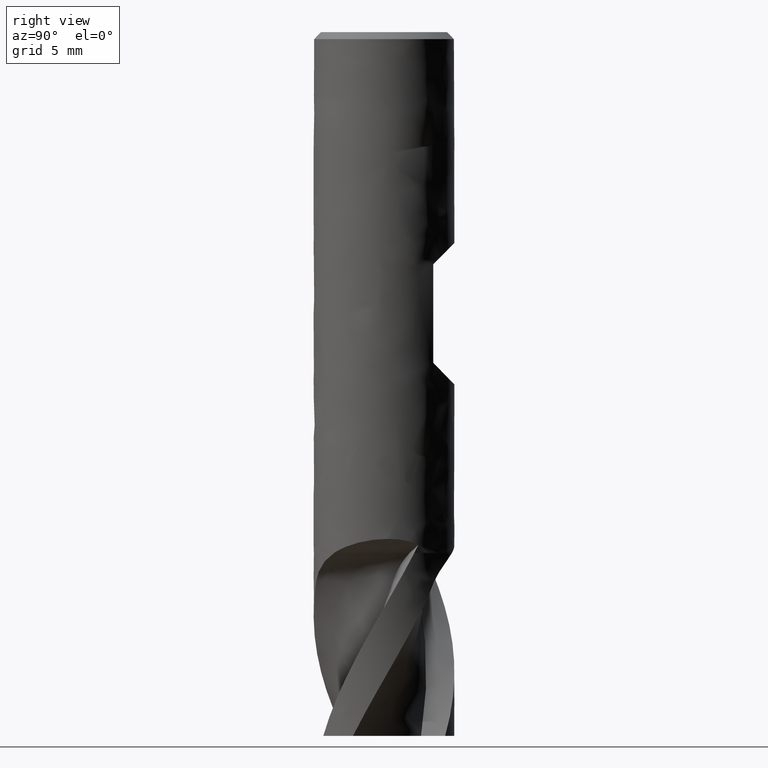
[diagram: clean part render]
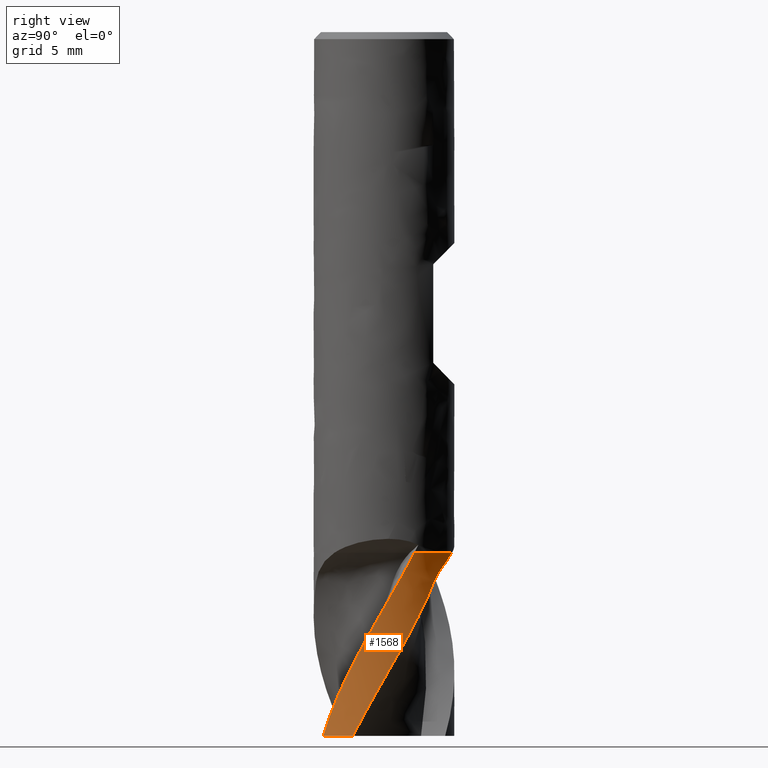
[diagram: same view with one face highlighted and labeled with its STEP entity id]
A machine part, right view. The second image highlights one B-rep face of the part: STEP entity #1568.
In plain terms, the highlighted face is a freeform B-spline surface patch.
Its self-contained STEP definition (entity closure, byte-faithful):
#996 = VERTEX_POINT('', #997);
#997 = CARTESIAN_POINT('', (4.51357657803262, 2.15119187294748, -37.));
#1003 = EDGE_CURVE('', #1004, #996, #1006, .T.);
#1004 = VERTEX_POINT('', #1005);
#1005 = CARTESIAN_POINT('', (1.30531146685175, 4.82660978063333, -37.));
#1006 = CIRCLE('', #1007, 5.);
#1007 = AXIS2_PLACEMENT_3D('', #1008, #1009, #1010);
#1008 = CARTESIAN_POINT('', (-4.71844785465692E-16, 2.67195134097322E-16, -37.));
#1009 = DIRECTION('', (3.74939945665465E-33, 6.12323399573677E-17, -1.));
#1010 = DIRECTION('', (-1., 4.60912628822424E-16, 2.4473359322044E-32));
#1379 = EDGE_CURVE('', #1004, #1380, #1382, .T.);
#1380 = VERTEX_POINT('', #1381);
#1381 = CARTESIAN_POINT('', (4.48830973908435, -2.20342362836576, -50.));
#1382 = B_SPLINE_CURVE_WITH_KNOTS('', 3, (#1383, #1384, #1385, #1386, #1387, #1388, #1389, #1390, #1391, #1392, #1393, #1394, #1395, #1396, #1397, #1398, #1399, #1400, #1401, #1402, #1403, #1404, #1405, #1406, #1407, #1408, #1409, #1410, #1411, #1412, #1413, #1414, #1415, #1416, #1417, #1418, #1419, #1420, #1421, #1422, #1423, #1424, #1425, #1426, #1427, #1428, #1429, #1430, #1431, #1432, #1433, #1434, #1435, #1436, #1437, #1438, #1439, #1440, #1441, #1442, #1443, #1444, #1445, #1446, #1447, #1448, #1449, #1450, #1451, #1452, #1453, #1454, #1455, #1456, #1457, #1458, #1459, #1460, #1461, #1462, #1463, #1464, #1465, #1466, #1467, #1468, #1469, #1470, #1471, #1472, #1473, #1474, #1475, #1476, #1477, #1478, #1479, #1480, #1481, #1482, #1483, #1484, #1485, #1486, #1487, #1488, #1489, #1490, #1491, #1492, #1493, #1494, #1495, #1496, #1497, #1498, #1499, #1500, #1501, #1502, #1503, #1504, #1505, #1506, #1507, #1508, #1509, #1510, #1511, #1512, #1513, #1514, #1515, #1516, #1517, #1518, #1519, #1520, #1521, #1522, #1523, #1524, #1525, #1526, #1527), .UNSPECIFIED., .F., .U., (4, 3, 3, 3, 3, 3, 3, 3, 3, 3, 3, 3, 3, 3, 3, 3, 3, 3, 3, 3, 3, 3, 3, 3, 3, 3, 3, 3, 3, 3, 3, 3, 3, 3, 3, 3, 3, 3, 3, 3, 3, 3, 3, 3, 3, 3, 3, 3, 4), (4.37844184585362, 4.4573991162144, 4.75083853816044, 5.04425922878088, 5.24034752674564, 5.4364595751668, 5.63260764538411, 5.82880447002843, 6.02506307923242, 6.22139839774282, 6.41784107427034, 6.61441003495847, 6.81111998971464, 7.00798120996846, 7.20499678276003, 7.40215933812683, 7.48976255478795, 7.62117620688937, 7.75255210436723, 7.88389475488637, 8.01521355028897, 8.14652150373495, 8.27783401833125, 8.40916802090349, 8.49674693366382, 8.58433799891098, 8.78146484131774, 8.97859443367228, 9.17570758804616, 9.47132619184794, 9.60267358640728, 10.0457101003328, 10.4888068283387, 10.6858315911003, 11.1290901207019, 11.572276998272, 11.8677385777687, 12.5321229845816, 12.97518599297, 13.9710224140371, 14.9665152821951, 15.6305259801557, 15.6889033012926, 16.6888511984757, 17.6884302266211, 18.35423921757, 19.0199493698703, 20.0187378524374, 20.3202438136071), .UNSPECIFIED.);
#1383 = CARTESIAN_POINT('', (1.30531146685175, 4.82660978063333, -37.));
#1384 = CARTESIAN_POINT('', (1.32828509140997, 4.82039677876786, -37.0112385803034));
#1385 = CARTESIAN_POINT('', (1.35117807859742, 4.81402949390408, -37.02257292185));
#1386 = CARTESIAN_POINT('', (1.37397539471853, 4.80751407847216, -37.0339977301277));
#1387 = CARTESIAN_POINT('', (1.45870009750942, 4.78329997216704, -37.0764572670588));
#1388 = CARTESIAN_POINT('', (1.54221869369486, 4.75700499499804, -37.1202234253692));
#1389 = CARTESIAN_POINT('', (1.62431501394362, 4.72880542372779, -37.1653054491186));
#1390 = CARTESIAN_POINT('', (1.70640609368007, 4.70060765254065, -37.2103845951154));
#1391 = CARTESIAN_POINT('', (1.78713850218525, 4.67048359613243, -37.2568140215424));
#1392 = CARTESIAN_POINT('', (1.86630054817101, 4.6386336634721, -37.30461717354));
#1393 = CARTESIAN_POINT('', (1.91920326211368, 4.61734886902747, -37.3365632462342));
#1394 = CARTESIAN_POINT('', (1.97142747399772, 4.595284863625, -37.3691366310585));
#1395 = CARTESIAN_POINT('', (2.02291045155155, 4.57250842590856, -37.4023484976844));
#1396 = CARTESIAN_POINT('', (2.07439966478708, 4.5497292294819, -37.4355643869725));
#1397 = CARTESIAN_POINT('', (2.12516516101477, 4.52622955443021, -37.4694302704926));
#1398 = CARTESIAN_POINT('', (2.17514388440675, 4.50208274936496, -37.5039612013215));
#1399 = CARTESIAN_POINT('', (2.22513178787411, 4.47793150902255, -37.5384984747803));
#1400 = CARTESIAN_POINT('', (2.27435000925492, 4.45312444427012, -37.5737129730712));
#1401 = CARTESIAN_POINT('', (2.32273436447439, 4.42774266100595, -37.6096241887208));
#1402 = CARTESIAN_POINT('', (2.37113074607532, 4.40235456886349, -37.6455443304371));
#1403 = CARTESIAN_POINT('', (2.41871004867935, 4.37638236906087, -37.6821742074358));
#1404 = CARTESIAN_POINT('', (2.46540586931815, 4.34991653937577, -37.7195383847928));
#1405 = CARTESIAN_POINT('', (2.51211639498962, 4.32344237530688, -37.7569143285442));
#1406 = CARTESIAN_POINT('', (2.5579600910179, 4.29646441134362, -37.7950386821634));
#1407 = CARTESIAN_POINT('', (2.60286684584795, 4.26908470082177, -37.83394177414));
#1408 = CARTESIAN_POINT('', (2.64779115285586, 4.2416942887128, -37.872860071713));
#1409 = CARTESIAN_POINT('', (2.69179401073874, 4.2138918703176, -37.9125744780811));
#1410 = CARTESIAN_POINT('', (2.73480545154496, 4.18579014550419, -37.9531129899421));
#1411 = CARTESIAN_POINT('', (2.77784041141558, 4.15767305440071, -37.9936736686465));
#1412 = CARTESIAN_POINT('', (2.81990106368949, 4.12924435697379, -38.0350752196904));
#1413 = CARTESIAN_POINT('', (2.86091530325868, 4.10062966232996, -38.0773455241977));
#1414 = CARTESIAN_POINT('', (2.90195590903763, 4.07199657258605, -38.1196430023825));
#1415 = CARTESIAN_POINT('', (2.94196697836536, 4.0431643968786, -38.1628290561138));
#1416 = CARTESIAN_POINT('', (2.98087060910215, 4.01427582657084, -38.2069337025));
#1417 = CARTESIAN_POINT('', (3.01980214445389, 3.98536653520399, -38.2510699840614));
#1418 = CARTESIAN_POINT('', (3.05764371805902, 3.95638644192391, -38.2961476810074));
#1419 = CARTESIAN_POINT('', (3.09430885158068, 3.92749955200881, -38.3421980718538));
#1420 = CARTESIAN_POINT('', (3.13100217975917, 3.89859044872997, -38.3882838744073));
#1421 = CARTESIAN_POINT('', (3.16653759520256, 3.8697584627274, -38.4353692489858));
#1422 = CARTESIAN_POINT('', (3.20081604883572, 3.8411946867499, -38.4834851102025));
#1423 = CARTESIAN_POINT('', (3.23512137909954, 3.8126085148363, -38.5316386975152));
#1424 = CARTESIAN_POINT('', (3.26818993124803, 3.78427226392183, -38.5808552622687));
#1425 = CARTESIAN_POINT('', (3.29990432131013, 3.75641204744617, -38.63116230632));
#1426 = CARTESIAN_POINT('', (3.3316423717492, 3.72853104598228, -38.6815068817136));
#1427 = CARTESIAN_POINT('', (3.36204890018549, 3.70110484285366, -38.7329824092251));
#1428 = CARTESIAN_POINT('', (3.39097993758663, 3.67440540263115, -38.7856071688594));
#1429 = CARTESIAN_POINT('', (3.40383456879674, 3.66254231411421, -38.8089893887307));
#1430 = CARTESIAN_POINT('', (3.41639863101299, 3.6508224612303, -38.8326074651311));
#1431 = CARTESIAN_POINT('', (3.42866999982171, 3.63926119319881, -38.8564497219011));
#1432 = CARTESIAN_POINT('', (3.44707828952727, 3.62191812621053, -38.8922155094588));
#1433 = CARTESIAN_POINT('', (3.46483578923556, 3.60492479946103, -38.9284960041812));
#1434 = CARTESIAN_POINT('', (3.48196752797164, 3.58830073072959, -38.9652245016833));
#1435 = CARTESIAN_POINT('', (3.4990943448268, 3.57168143802748, -39.001942447233));
#1436 = CARTESIAN_POINT('', (3.515601925058, 3.55542543747201, -39.039121711182));
#1437 = CARTESIAN_POINT('', (3.53154057932516, 3.53952272723051, -39.0766823205757));
#1438 = CARTESIAN_POINT('', (3.5474752000383, 3.52362404144678, -39.1142334246031));
#1439 = CARTESIAN_POINT('', (3.56284597829233, 3.50807391247602, -39.1521768732114));
#1440 = CARTESIAN_POINT('', (3.5777311661519, 3.49282689275406, -39.1904224655402));
#1441 = CARTESIAN_POINT('', (3.59261365048836, 3.47758264227294, -39.2286611115111));
#1442 = CARTESIAN_POINT('', (3.60701410650809, 3.46263813181096, -39.2672097949299));
#1443 = CARTESIAN_POINT('', (3.62103818344278, 3.44790987034893, -39.305971543328));
#1444 = CARTESIAN_POINT('', (3.6350611025201, 3.43318282488321, -39.3447300914744));
#1445 = CARTESIAN_POINT('', (3.64870984180672, 3.41866992139379, -39.3837062751162));
#1446 = CARTESIAN_POINT('', (3.66211310441732, 3.40425140235778, -39.4227986278494));
#1447 = CARTESIAN_POINT('', (3.67551683260746, 3.38983238247601, -39.4618923385057));
#1448 = CARTESIAN_POINT('', (3.68867633855818, 3.37550651854632, -39.501104083009));
#1449 = CARTESIAN_POINT('', (3.70173528819006, 3.36112419529068, -39.5403277861603));
#1450 = CARTESIAN_POINT('', (3.71479637478807, 3.34673951851209, -39.5795579078773));
#1451 = CARTESIAN_POINT('', (3.72775786729944, 3.33229735865728, -39.6188006533316));
#1452 = CARTESIAN_POINT('', (3.74076709742732, 3.31762890070683, -39.6579428253703));
#1453 = CARTESIAN_POINT('', (3.7494421869558, 3.30784736984649, -39.6840444350304));
#1454 = CARTESIAN_POINT('', (3.7581387192353, 3.29796464646932, -39.7101016077045));
#1455 = CARTESIAN_POINT('', (3.76689825536777, 3.28792906457959, -39.7360782736572));
#1456 = CARTESIAN_POINT('', (3.77565900697717, 3.27789209014828, -39.7620585441431));
#1457 = CARTESIAN_POINT('', (3.7844883250629, 3.26769554352666, -39.7879546757894));
#1458 = CARTESIAN_POINT('', (3.79337432355405, 3.25734727061774, -39.8137697558326));
#1459 = CARTESIAN_POINT('', (3.81337258272863, 3.23405811027769, -39.8718675218663));
#1460 = CARTESIAN_POINT('', (3.83365516347632, 3.21000226212264, -39.9295645357856));
#1461 = CARTESIAN_POINT('', (3.85406535442965, 3.18530693086007, -39.9869337827438));
#1462 = CARTESIAN_POINT('', (3.87447583010808, 3.16061125509409, -40.0443038300113));
#1463 = CARTESIAN_POINT('', (3.89501652167895, 3.13527285917332, -40.1013535035284));
#1464 = CARTESIAN_POINT('', (3.91554441967979, 3.10942308113812, -40.1581705838971));
#1465 = CARTESIAN_POINT('', (3.93607060592754, 3.08357545862987, -40.2149829264786));
#1466 = CARTESIAN_POINT('', (3.95658569113295, 3.05721433957255, -40.2715670794764));
#1467 = CARTESIAN_POINT('', (3.97695852754911, 3.03047865363781, -40.3280225204433));
#1468 = CARTESIAN_POINT('', (4.00751249781027, 2.9903820595124, -40.412691038324));
#1469 = CARTESIAN_POINT('', (4.03774793176657, 2.94943479870226, -40.4970742800089));
#1470 = CARTESIAN_POINT('', (4.06725680444533, 2.90816472825959, -40.5815494100662));
#1471 = CARTESIAN_POINT('', (4.08036800073978, 2.88982787071338, -40.6190828673499));
#1472 = CARTESIAN_POINT('', (4.09333610376509, 2.8714285784168, -40.6566362423227));
#1473 = CARTESIAN_POINT('', (4.10612755050172, 2.85301884659228, -40.6942442852543));
#1474 = CARTESIAN_POINT('', (4.14927327097279, 2.79092257557601, -40.8210967157261));
#1475 = CARTESIAN_POINT('', (4.19044949620841, 2.72866577597341, -40.9485524181277));
#1476 = CARTESIAN_POINT('', (4.22993499822604, 2.66601761261677, -41.0763222969887));
#1477 = CARTESIAN_POINT('', (4.26942586680629, 2.60336093460857, -41.2041095413388));
#1478 = CARTESIAN_POINT('', (4.3072342486109, 2.54030207068243, -41.3322292702457));
#1479 = CARTESIAN_POINT('', (4.34363555419278, 2.47645516259681, -41.4603443946404));
#1480 = CARTESIAN_POINT('', (4.35982154281147, 2.44806537516767, -41.5173113059143));
#1481 = CARTESIAN_POINT('', (4.37572979474424, 2.41951653184847, -41.5742787932573));
#1482 = CARTESIAN_POINT('', (4.3913814500553, 2.39076744166181, -41.6312148164534));
#1483 = CARTESIAN_POINT('', (4.42659392599877, 2.32608887402949, -41.7593072327035));
#1484 = CARTESIAN_POINT('', (4.46049913395283, 2.26040365150372, -41.8872612826451));
#1485 = CARTESIAN_POINT('', (4.49297239319202, 2.19390042481749, -42.0151429113044));
#1486 = CARTESIAN_POINT('', (4.52544040318086, 2.12740794827135, -42.1430038681032));
#1487 = CARTESIAN_POINT('', (4.55648059162856, 2.06008958015084, -42.2708084508051));
#1488 = CARTESIAN_POINT('', (4.58598739393112, 1.99216455713498, -42.3986340556327));
#1489 = CARTESIAN_POINT('', (4.60565883921852, 1.9468806473368, -42.4838521814706));
#1490 = CARTESIAN_POINT('', (4.62464843104274, 1.90133001298596, -42.5690891096805));
#1491 = CARTESIAN_POINT('', (4.64293842915654, 1.85556534324755, -42.6543580852247));
#1492 = CARTESIAN_POINT('', (4.68406590694281, 1.75265743552928, -42.8460966450503));
#1493 = CARTESIAN_POINT('', (4.72168332718159, 1.64860754378242, -43.0380101134365));
#1494 = CARTESIAN_POINT('', (4.75578179558482, 1.54354770343647, -43.2299603846607));
#1495 = CARTESIAN_POINT('', (4.77852129674898, 1.47348566036749, -43.3579677005421));
#1496 = CARTESIAN_POINT('', (4.7997005102055, 1.40295868585785, -43.4860080335604));
#1497 = CARTESIAN_POINT('', (4.81930970964114, 1.33201123214432, -43.6140454726961));
#1498 = CARTESIAN_POINT('', (4.86338370050985, 1.1725484535953, -43.9018247337434));
#1499 = CARTESIAN_POINT('', (4.89951812116161, 1.01093317267968, -44.1897433664378));
#1500 = CARTESIAN_POINT('', (4.92752891129255, 0.84820918904293, -44.477708812782));
#1501 = CARTESIAN_POINT('', (4.95553003800063, 0.685541343439247, -44.7655749141288));
#1502 = CARTESIAN_POINT('', (4.97543722822159, 0.52166277808049, -45.0536589223952));
#1503 = CARTESIAN_POINT('', (4.98720730162065, 0.35743996791498, -45.3417632739561));
#1504 = CARTESIAN_POINT('', (4.99505814104175, 0.247900556547017, -45.5339337833435));
#1505 = CARTESIAN_POINT('', (4.99929321746083, 0.138169514454871, -45.7261766303668));
#1506 = CARTESIAN_POINT('', (4.99991866242273, 0.028519627573876, -45.9184434609077));
#1507 = CARTESIAN_POINT('', (4.99997364918952, 0.0188796222565872, -45.93534683693));
#1508 = CARTESIAN_POINT('', (5.00000075270879, 0.00924011777661526, -45.9522506122812));
#1509 = CARTESIAN_POINT('', (4.9999999841036, -0.000398702920753829, -45.9691547532528));
#1510 = CARTESIAN_POINT('', (4.99998681862882, -0.165502518922478, -46.2587065841524));
#1511 = CARTESIAN_POINT('', (4.99178586845593, -0.33045665379492, -46.5484576601442));
#1512 = CARTESIAN_POINT('', (4.97550132435875, -0.494354701913809, -46.8382365007371));
#1513 = CARTESIAN_POINT('', (4.95922278743868, -0.65819228996727, -47.1279084453184));
#1514 = CARTESIAN_POINT('', (4.93485704321763, -0.821074308734172, -47.4177793394779));
#1515 = CARTESIAN_POINT('', (4.90259495116627, -0.982121552965292, -47.7076767765879));
#1516 = CARTESIAN_POINT('', (4.88110551376334, -1.08939341457644, -47.9007743853272));
#1517 = CARTESIAN_POINT('', (4.85610821825018, -1.19588609053482, -48.0939476461363));
#1518 = CARTESIAN_POINT('', (4.82767969530298, -1.30134882316756, -48.287144866155));
#1519 = CARTESIAN_POINT('', (4.7992553925403, -1.40679589996789, -48.4803134062483));
#1520 = CARTESIAN_POINT('', (4.76739376557301, -1.51123937171692, -48.6735569265241));
#1521 = CARTESIAN_POINT('', (4.73218917940143, -1.61443041669693, -48.8668270929324));
#1522 = CARTESIAN_POINT('', (4.67937049385154, -1.7692515905576, -49.1567971580807));
#1523 = CARTESIAN_POINT('', (4.6189980313746, -1.9213239941659, -49.4469688541465));
#1524 = CARTESIAN_POINT('', (4.55144457062605, -2.06986770604336, -49.7371642085261));
#1525 = CARTESIAN_POINT('', (4.53105209367139, -2.11470884649206, -49.8247659688351));
#1526 = CARTESIAN_POINT('', (4.51000346114307, -2.159234148531, -49.9123796730348));
#1527 = CARTESIAN_POINT('', (4.48830973908435, -2.20342362836576, -50.));
#1568 = ADVANCED_FACE('', (#1569), #1703, .T.);
#1569 = FACE_OUTER_BOUND('', #1570, .T.);
#1570 = EDGE_LOOP('', (#1571, #1572, #1695, #1702));
#1571 = ORIENTED_EDGE('', *, *, #1003, .T.);
#1572 = ORIENTED_EDGE('', *, *, #1573, .T.);
#1573 = EDGE_CURVE('', #996, #1574, #1576, .T.);
#1574 = VERTEX_POINT('', #1575);
#1575 = CARTESIAN_POINT('', (2.52471228494179, -4.31576503974255, -50.));
#1576 = B_SPLINE_CURVE_WITH_KNOTS('', 3, (#1577, #1578, #1579, #1580, #1581, #1582, #1583, #1584, #1585, #1586, #1587, #1588, #1589, #1590, #1591, #1592, #1593, #1594, #1595, #1596, #1597, #1598, #1599, #1600, #1601, #1602, #1603, #1604, #1605, #1606, #1607, #1608, #1609, #1610, #1611, #1612, #1613, #1614, #1615, #1616, #1617, #1618, #1619, #1620, #1621, #1622, #1623, #1624, #1625, #1626, #1627, #1628, #1629, #1630, #1631, #1632, #1633, #1634, #1635, #1636, #1637, #1638, #1639, #1640, #1641, #1642, #1643, #1644, #1645, #1646, #1647, #1648, #1649, #1650, #1651, #1652, #1653, #1654, #1655, #1656, #1657, #1658, #1659, #1660, #1661, #1662, #1663, #1664, #1665, #1666, #1667, #1668, #1669, #1670, #1671, #1672, #1673, #1674, #1675, #1676, #1677, #1678, #1679, #1680, #1681, #1682, #1683, #1684, #1685, #1686, #1687, #1688, #1689, #1690, #1691, #1692, #1693, #1694), .UNSPECIFIED., .F., .U., (4, 3, 3, 3, 3, 3, 3, 3, 3, 3, 3, 3, 3, 3, 3, 3, 3, 3, 3, 3, 3, 3, 3, 3, 3, 3, 3, 3, 3, 3, 3, 3, 3, 3, 3, 3, 3, 3, 3, 4), (0.660101457707535, 0.788015446717256, 0.985019040931394, 1.18202238377968, 1.37902460556503, 1.57602425974893, 1.77302135436621, 2.06858821376276, 2.26566389090764, 2.46277342951328, 2.65991293752496, 2.74750546111594, 2.94460382971803, 3.14154836010868, 3.33840799857541, 3.53525252840326, 3.73214857226571, 3.81971554835767, 4.11524449749473, 4.41080138553026, 4.70629177718464, 4.90324373998797, 5.10015229603674, 5.18771418202401, 5.63140652950315, 5.92717037484076, 6.12432575781879, 6.56818160772682, 7.01196124286788, 7.45565909294126, 8.12140928759308, 8.78710812321912, 9.45269334664795, 10.4511961006731, 11.4493962791665, 12.447287211838, 13.4448771830679, 14.4421672631738, 15.4391582437301, 15.6334436813352), .UNSPECIFIED.);
#1577 = CARTESIAN_POINT('', (4.51357657803262, 2.15119187294748, -37.));
#1578 = CARTESIAN_POINT('', (4.52269019052406, 2.13206992087992, -37.0370039423316));
#1579 = CARTESIAN_POINT('', (4.53168247840204, 2.1128896324546, -37.0740082613894));
#1580 = CARTESIAN_POINT('', (4.54055210160929, 2.09365389034852, -37.111012514407));
#1581 = CARTESIAN_POINT('', (4.55421243434287, 2.06402843373027, -37.16800370749));
#1582 = CARTESIAN_POINT('', (4.56758224969655, 2.03427042842638, -37.224996526924));
#1583 = CARTESIAN_POINT('', (4.58065716627806, 2.00439016287385, -37.2819920069742));
#1584 = CARTESIAN_POINT('', (4.59373206617668, 1.97450993544692, -37.3389874143012));
#1585 = CARTESIAN_POINT('', (4.60651238108974, 1.94450670986796, -37.3959868105145));
#1586 = CARTESIAN_POINT('', (4.61899364227849, 1.91439226194396, -37.4529920348381));
#1587 = CARTESIAN_POINT('', (4.63147483244164, 1.88427798538858, -37.5099969347691));
#1588 = CARTESIAN_POINT('', (4.64365726800277, 1.85405174191559, -37.5670089894672));
#1589 = CARTESIAN_POINT('', (4.65553635275436, 1.82372730093692, -37.624031125531));
#1590 = CARTESIAN_POINT('', (4.66741528268152, 1.79340325518769, -37.6810525184046));
#1591 = CARTESIAN_POINT('', (4.67899114680903, 1.76298026432403, -37.7380853198429));
#1592 = CARTESIAN_POINT('', (4.69025923584381, 1.7324746175866, -37.7951338225287));
#1593 = CARTESIAN_POINT('', (4.70152717847515, 1.70196936720132, -37.8521815839978));
#1594 = CARTESIAN_POINT('', (4.71248586953033, 1.6713858527071, -37.9092494601207));
#1595 = CARTESIAN_POINT('', (4.72313787907759, 1.64072196767838, -37.9663304969753));
#1596 = CARTESIAN_POINT('', (4.73911974426328, 1.59471505467065, -38.0519726879274));
#1597 = CARTESIAN_POINT('', (4.75441577387398, 1.54851657799328, -38.1376429117305));
#1598 = CARTESIAN_POINT('', (4.76904964221312, 1.50205376405337, -38.2232799232886));
#1599 = CARTESIAN_POINT('', (4.778807094446, 1.47107366520887, -38.2803802764065));
#1600 = CARTESIAN_POINT('', (4.78827034108927, 1.43997474325795, -38.3374673527001));
#1601 = CARTESIAN_POINT('', (4.79744387580808, 1.40873427532361, -38.394522625451));
#1602 = CARTESIAN_POINT('', (4.8066189867198, 1.37748843966509, -38.4515877014152));
#1603 = CARTESIAN_POINT('', (4.81550454614975, 1.3461000683908, -38.5086222650346));
#1604 = CARTESIAN_POINT('', (4.82410224789088, 1.31454840226372, -38.5656089274251));
#1605 = CARTESIAN_POINT('', (4.83270125686462, 1.28299193888178, -38.6226042543199));
#1606 = CARTESIAN_POINT('', (4.84101255765101, 1.25127113822319, -38.6795530512326));
#1607 = CARTESIAN_POINT('', (4.84903465735026, 1.21936987490099, -38.7364404482481));
#1608 = CARTESIAN_POINT('', (4.85259901623622, 1.20519558691421, -38.7617165114552));
#1609 = CARTESIAN_POINT('', (4.85610627380285, 1.1909856105809, -38.7869807087667));
#1610 = CARTESIAN_POINT('', (4.85955608305265, 1.17673900065646, -38.81223199363));
#1611 = CARTESIAN_POINT('', (4.86731875213956, 1.14468165764246, -38.8690517637158));
#1612 = CARTESIAN_POINT('', (4.87478778972705, 1.11244567888946, -38.9258117438629));
#1613 = CARTESIAN_POINT('', (4.88192483914902, 1.08018973560194, -38.9826011371794));
#1614 = CARTESIAN_POINT('', (4.88905631799764, 1.04795896855845, -39.0393462055287));
#1615 = CARTESIAN_POINT('', (4.89585689011766, 1.01570773139388, -39.0961223599831));
#1616 = CARTESIAN_POINT('', (4.90231199648596, 0.983532962899463, -39.1529800682631));
#1617 = CARTESIAN_POINT('', (4.90876432041396, 0.951372063173041, -39.2098132683213));
#1618 = CARTESIAN_POINT('', (4.91487207410147, 0.919286874262206, -39.2667296300289));
#1619 = CARTESIAN_POINT('', (4.92063852051666, 0.887308599308967, -39.3237393363156));
#1620 = CARTESIAN_POINT('', (4.926404524367, 0.855332778633362, -39.3807446672053));
#1621 = CARTESIAN_POINT('', (4.93182988379401, 0.823463001094806, -39.4378449401624));
#1622 = CARTESIAN_POINT('', (4.93692935846076, 0.791661865677616, -39.4950112834286));
#1623 = CARTESIAN_POINT('', (4.94203016765541, 0.759852407932186, -39.5521925870749));
#1624 = CARTESIAN_POINT('', (4.94680551263605, 0.728110696036531, -39.6094413942207));
#1625 = CARTESIAN_POINT('', (4.95127498931909, 0.696330367098295, -39.6666916851714));
#1626 = CARTESIAN_POINT('', (4.95326273142995, 0.682196475681596, -39.6921530137009));
#1627 = CARTESIAN_POINT('', (4.95519001294439, 0.668053940389463, -39.7176143412419));
#1628 = CARTESIAN_POINT('', (4.95705849668959, 0.653889180517228, -39.7430675454021));
#1629 = CARTESIAN_POINT('', (4.96336442459008, 0.606084668055544, -39.8289693204016));
#1630 = CARTESIAN_POINT('', (4.96900307088977, 0.558008114060345, -39.9147720077417));
#1631 = CARTESIAN_POINT('', (4.97395945829877, 0.50963448391976, -40.0004433402708));
#1632 = CARTESIAN_POINT('', (4.9789163142778, 0.461256280603028, -40.0861227720494));
#1633 = CARTESIAN_POINT('', (4.98319011756973, 0.412578383255385, -40.1716757797653));
#1634 = CARTESIAN_POINT('', (4.98675681460506, 0.363670829171006, -40.2571235172016));
#1635 = CARTESIAN_POINT('', (4.99032270918086, 0.314774278637853, -40.3425520300299));
#1636 = CARTESIAN_POINT('', (4.99318109981958, 0.265645357045767, -40.4278801306741));
#1637 = CARTESIAN_POINT('', (4.99531284128629, 0.216447725052183, -40.5131835171647));
#1638 = CARTESIAN_POINT('', (4.9967337019231, 0.183656235176107, -40.5700404231001));
#1639 = CARTESIAN_POINT('', (4.9978319113918, 0.150835115641241, -40.6268892306513));
#1640 = CARTESIAN_POINT('', (4.99860607545858, 0.118056352597274, -40.6837659549689));
#1641 = CARTESIAN_POINT('', (4.99938006890533, 0.085284813750021, -40.7406301440774));
#1642 = CARTESIAN_POINT('', (4.99983058480247, 0.0525565985958612, -40.797524633626));
#1643 = CARTESIAN_POINT('', (4.99996049639729, 0.0198754739954479, -40.8544459481318));
#1644 = CARTESIAN_POINT('', (5.00001826587406, 0.00534273370411942, -40.8797578886133));
#1645 = CARTESIAN_POINT('', (5.00001263846642, -0.00918086962307883, -40.9050753006882));
#1646 = CARTESIAN_POINT('', (4.99994385299803, -0.0236952920888031, -40.9303977219325));
#1647 = CARTESIAN_POINT('', (4.99959530424767, -0.0972425678642179, -41.0587111359146));
#1648 = CARTESIAN_POINT('', (4.99762678497782, -0.170550383505014, -41.1871674898222));
#1649 = CARTESIAN_POINT('', (4.99405839517969, -0.243681647924708, -41.3156693973044));
#1650 = CARTESIAN_POINT('', (4.9916797183908, -0.292430705919644, -41.4013283420802));
#1651 = CARTESIAN_POINT('', (4.9885897012823, -0.341106987982313, -41.4870119235857));
#1652 = CARTESIAN_POINT('', (4.98478588744022, -0.389755893318829, -41.5726763770572));
#1653 = CARTESIAN_POINT('', (4.98225027537461, -0.422185122632284, -41.6297800710956));
#1654 = CARTESIAN_POINT('', (4.97939679206752, -0.45460768552448, -41.6868743274313));
#1655 = CARTESIAN_POINT('', (4.97622471511513, -0.487019080403793, -41.7439563344478));
#1656 = CARTESIAN_POINT('', (4.96908341929855, -0.559986843208756, -41.8724650383749));
#1657 = CARTESIAN_POINT('', (4.96032620210445, -0.632898837231896, -42.000925815704));
#1658 = CARTESIAN_POINT('', (4.94995854631525, -0.705627656601241, -42.1293501515843));
#1659 = CARTESIAN_POINT('', (4.93959267076275, -0.778343987659299, -42.2577524356412));
#1660 = CARTESIAN_POINT('', (4.92761528693375, -0.850885687960377, -42.3861337246856));
#1661 = CARTESIAN_POINT('', (4.91404996817272, -0.923099621006164, -42.5145213904893));
#1662 = CARTESIAN_POINT('', (4.90048714939236, -0.99530024559673, -42.6428853954642));
#1663 = CARTESIAN_POINT('', (4.88533873631743, -1.06717069307242, -42.7712777583225));
#1664 = CARTESIAN_POINT('', (4.86862298142884, -1.13864404653209, -42.8996769066899));
#1665 = CARTESIAN_POINT('', (4.84354168552219, -1.24588684468927, -43.0923344956429));
#1666 = CARTESIAN_POINT('', (4.81492616030494, -1.35226052527659, -43.2850500656497));
#1667 = CARTESIAN_POINT('', (4.7828296480809, -1.45758037769393, -43.4777274600994));
#1668 = CARTESIAN_POINT('', (4.75073561192913, -1.56289210525444, -43.6703899905306));
#1669 = CARTESIAN_POINT('', (4.71514854386364, -1.66718417470491, -43.8630623381447));
#1670 = CARTESIAN_POINT('', (4.6761581132882, -1.77018227861679, -44.0557033894929));
#1671 = CARTESIAN_POINT('', (4.63717433705591, -1.87316280424812, -44.2483115635519));
#1672 = CARTESIAN_POINT('', (4.59477907079943, -1.97487440323048, -44.440942017146));
#1673 = CARTESIAN_POINT('', (4.54908339829272, -2.07505186329824, -44.6335530609402));
#1674 = CARTESIAN_POINT('', (4.48053131324202, -2.22533685498361, -44.9225057764069));
#1675 = CARTESIAN_POINT('', (4.40450918370869, -2.37225240731298, -45.2115544516683));
#1676 = CARTESIAN_POINT('', (4.32142604161837, -2.51501033135504, -45.5005112053353));
#1677 = CARTESIAN_POINT('', (4.23836807614955, -2.65772499557171, -45.7893803966566));
#1678 = CARTESIAN_POINT('', (4.1482040319977, -2.79636736126474, -46.0783339207562));
#1679 = CARTESIAN_POINT('', (4.05143373397082, -2.93016803259527, -46.3672013652289));
#1680 = CARTESIAN_POINT('', (3.95469341571253, -3.06392725202118, -46.6559793175815));
#1681 = CARTESIAN_POINT('', (3.85129281696635, -3.19292866500344, -46.9448453700987));
#1682 = CARTESIAN_POINT('', (3.74179961414991, -3.31646432930426, -47.2336240083423));
#1683 = CARTESIAN_POINT('', (3.63233943421311, -3.43996273555373, -47.5223155516617));
#1684 = CARTESIAN_POINT('', (3.51672442555959, -3.55807290936359, -47.8110938593589));
#1685 = CARTESIAN_POINT('', (3.39559070739284, -3.67014492191621, -48.0997851838693));
#1686 = CARTESIAN_POINT('', (3.27449340391344, -3.78218324387171, -48.3883897232592));
#1687 = CARTESIAN_POINT('', (3.14780746918393, -3.88825476787554, -48.6770809563075));
#1688 = CARTESIAN_POINT('', (3.01623019855476, -3.98777574461332, -48.965685737446));
#1689 = CARTESIAN_POINT('', (2.88469238956585, -4.08726687378727, -49.2542039624642));
#1690 = CARTESIAN_POINT('', (2.74818850664455, -4.18027044879199, -49.5428104559975));
#1691 = CARTESIAN_POINT('', (2.60746312931693, -4.26627894414474, -49.8313279650828));
#1692 = CARTESIAN_POINT('', (2.58003972022953, -4.28303957536734, -49.887551894489));
#1693 = CARTESIAN_POINT('', (2.55245422605593, -4.2995360701638, -49.9437763607327));
#1694 = CARTESIAN_POINT('', (2.52471228494178, -4.31576503974255, -50.));
#1695 = ORIENTED_EDGE('', *, *, #1696, .F.);
#1696 = EDGE_CURVE('', #1380, #1574, #1697, .T.);
#1697 = CIRCLE('', #1698, 5.);
#1698 = AXIS2_PLACEMENT_3D('', #1699, #1700, #1701);
#1699 = CARTESIAN_POINT('', (1.87469972832732E-31, 3.06161699786838E-15, -50.));
#1700 = DIRECTION('', (3.74939945665464E-33, 6.12323399573677E-17, -1.));
#1701 = DIRECTION('', (-1., 6.12323399573677E-17, 0.));
#1702 = ORIENTED_EDGE('', *, *, #1379, .F.);
#1703 = (
   BOUNDED_SURFACE ()
   B_SPLINE_SURFACE (1, 2, ((#1704, #1705, #1706, #1707, #1708, #1709, #1710, #1711, #1712), (#1713, #1714, #1715, #1716, #1717, #1718, #1719, #1720, #1721)), .UNSPECIFIED., .F., .T., .U.)
   B_SPLINE_SURFACE_WITH_KNOTS ((2, 2), (3, 2, 2, 2, 3), (-0.677966101694915, -0.23728813559322), (0., 0.25, 0.5, 0.75, 1.), .UNSPECIFIED.)
   GEOMETRIC_REPRESENTATION_ITEM ()
   RATIONAL_B_SPLINE_SURFACE (((1., 0.707106781186548, 1., 0.707106781186548, 1., 0.707106781186548, 1., 0.707106781186548, 1.), (1., 0.707106781186548, 1., 0.707106781186548, 1., 0.707106781186548, 1., 0.707106781186548, 1.)))
   REPRESENTATION_ITEM ('')
   SURFACE ()
);
#1704 = CARTESIAN_POINT('', (-5., 3.36777869765522E-15, -50.));
#1705 = CARTESIAN_POINT('', (-5., 5., -50.));
#1706 = CARTESIAN_POINT('', (1.52655665885959E-15, 5., -50.));
#1707 = CARTESIAN_POINT('', (5., 5., -50.));
#1708 = CARTESIAN_POINT('', (5., -6.29024190995342E-16, -50.));
#1709 = CARTESIAN_POINT('', (5., -5., -50.));
#1710 = CARTESIAN_POINT('', (-1.8579228302173E-15, -5., -50.));
#1711 = CARTESIAN_POINT('', (-5., -5., -50.));
#1712 = CARTESIAN_POINT('', (-5., 3.36777869765522E-15, -50.));
#1713 = CARTESIAN_POINT('', (-5., 2.57175827820944E-15, -37.));
#1714 = CARTESIAN_POINT('', (-5., 5., -37.));
#1715 = CARTESIAN_POINT('', (1.52655665885959E-15, 5., -37.));
#1716 = CARTESIAN_POINT('', (5., 5., -37.));
#1717 = CARTESIAN_POINT('', (5., -1.42504461044112E-15, -37.));
#1718 = CARTESIAN_POINT('', (5., -5., -37.));
#1719 = CARTESIAN_POINT('', (-1.8579228302173E-15, -5., -37.));
#1720 = CARTESIAN_POINT('', (-5., -5., -37.));
#1721 = CARTESIAN_POINT('', (-5., 2.57175827820944E-15, -37.));